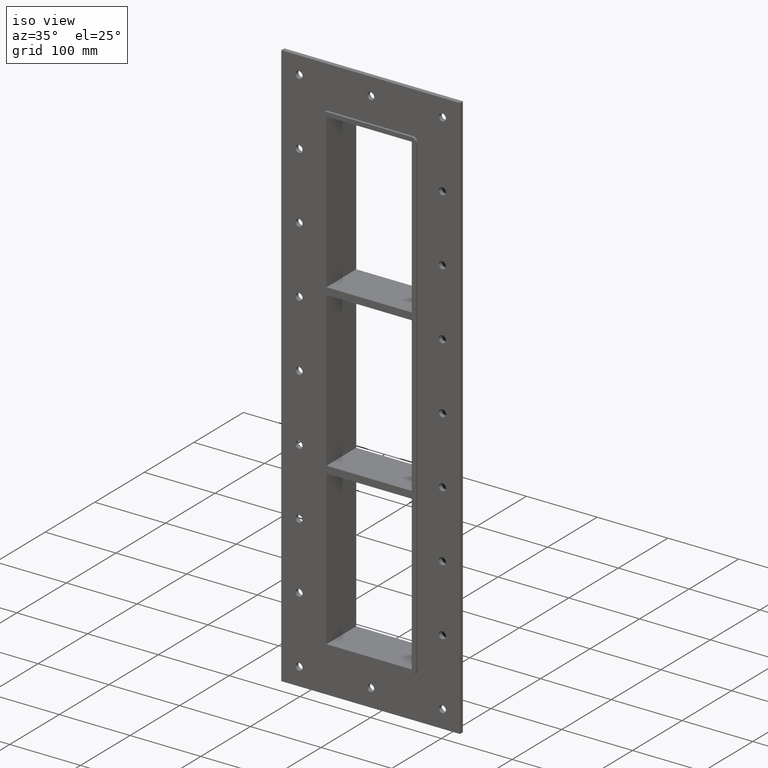
[diagram: clean part render]
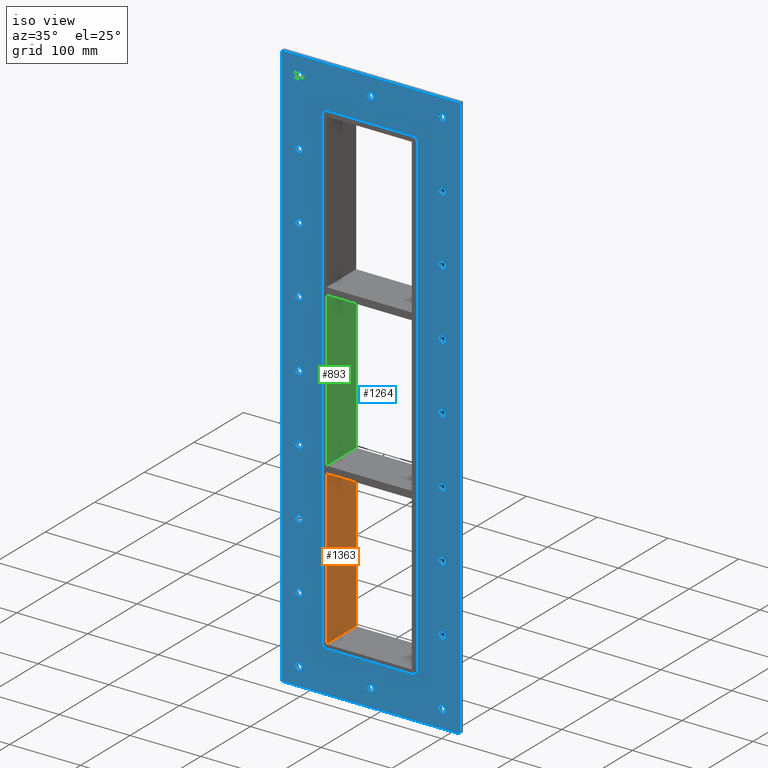
[diagram: same view with three faces highlighted in distinct colors, each labeled with its STEP entity id]
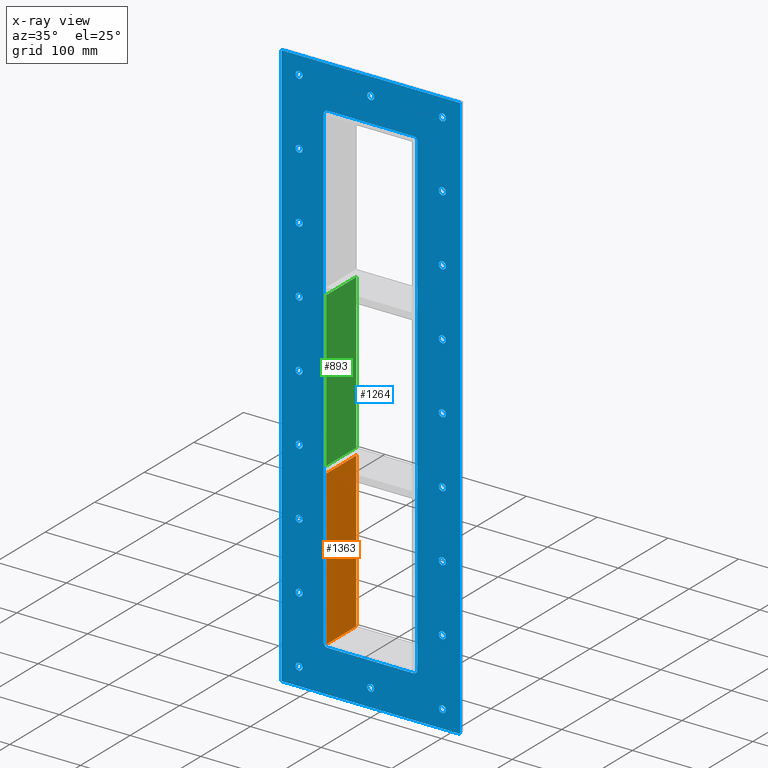
[diagram: x-ray of the same camera — body ghosted, the three highlighted faces saturated]
A machine part, iso view with three faces highlighted in distinct colors.
The next image is the same camera in x-ray (body ghosted, the three faces saturated) — at least one of them is partly hidden behind the body in this view.
Their STEP definitions:

[orange] entity #1363 — the highlighted planar face has unit normal (-1, 0, 0).
#808=CARTESIAN_POINT('',(-60.249999999999673,-3.0,-119.00000000001114));
#809=VERTEX_POINT('',#808);
#816=CARTESIAN_POINT('',(-60.249999999999673,57.0,-119.00000000001114));
#817=VERTEX_POINT('',#816);
#818=CARTESIAN_POINT('',(-60.249999999999993,57.000000000000007,-119.00000000001116));
#819=DIRECTION('',(0.0,-1.0,0.0));
#820=VECTOR('',#819,60.000000000000007);
#821=LINE('',#818,#820);
#822=EDGE_CURVE('',#817,#809,#821,.T.);
#1333=CARTESIAN_POINT('',(-60.249999999999993,0.0,-337.0));
#1334=DIRECTION('',(-1.0,0.0,0.0));
#1335=DIRECTION('',(0.0,0.0,1.0));
#1336=AXIS2_PLACEMENT_3D('',#1333,#1334,#1335);
#1337=PLANE('',#1336);
#1338=ORIENTED_EDGE('',*,*,#822,.T.);
#1339=CARTESIAN_POINT('',(-60.249999999999993,-3.0,-337.0));
#1340=VERTEX_POINT('',#1339);
#1341=CARTESIAN_POINT('',(-60.249999999999993,-3.0,-337.0));
#1342=DIRECTION('',(0.0,0.0,1.0));
#1343=VECTOR('',#1342,217.99999999998886);
#1344=LINE('',#1341,#1343);
#1345=EDGE_CURVE('',#1340,#809,#1344,.T.);
#1346=ORIENTED_EDGE('',*,*,#1345,.F.);
#1347=CARTESIAN_POINT('',(-60.249999999999993,57.0,-337.0));
#1348=VERTEX_POINT('',#1347);
#1349=CARTESIAN_POINT('',(-60.249999999999993,-3.0,-337.0));
#1350=DIRECTION('',(0.0,1.0,0.0));
#1351=VECTOR('',#1350,60.0);
#1352=LINE('',#1349,#1351);
#1353=EDGE_CURVE('',#1340,#1348,#1352,.T.);
#1354=ORIENTED_EDGE('',*,*,#1353,.T.);
#1355=CARTESIAN_POINT('',(-60.249999999999993,57.0,-119.00000000001113));
#1356=DIRECTION('',(0.0,0.0,-1.0));
#1357=VECTOR('',#1356,217.99999999998886);
#1358=LINE('',#1355,#1357);
#1359=EDGE_CURVE('',#817,#1348,#1358,.T.);
#1360=ORIENTED_EDGE('',*,*,#1359,.F.);
#1361=EDGE_LOOP('',(#1338,#1346,#1354,#1360));
#1362=FACE_OUTER_BOUND('',#1361,.T.);
#1363=ADVANCED_FACE('',(#1362),#1337,.F.);

[blue] entity #1264 — the highlighted planar face has unit normal (0, 1, 0).
#84=CARTESIAN_POINT('',(-96.250000000000057,0.0,-378.00000000000006));
#85=VERTEX_POINT('',#84);
#86=CARTESIAN_POINT('',(-101.25000000000006,0.0,-378.00000000000006));
#87=DIRECTION('',(0.0,1.0,0.0));
#88=DIRECTION('',(1.0,0.0,0.0));
#89=AXIS2_PLACEMENT_3D('',#86,#87,#88);
#90=CIRCLE('',#89,5.0);
#91=EDGE_CURVE('',#85,#85,#90,.T.);
#112=CARTESIAN_POINT('',(106.34999999999997,0.0,-283.5));
#113=VERTEX_POINT('',#112);
#114=CARTESIAN_POINT('',(101.34999999999997,0.0,-283.5));
#115=DIRECTION('',(0.0,1.0,0.0));
#116=DIRECTION('',(1.0,0.0,0.0));
#117=AXIS2_PLACEMENT_3D('',#114,#115,#116);
#118=CIRCLE('',#117,5.0);
#119=EDGE_CURVE('',#113,#113,#118,.T.);
#140=CARTESIAN_POINT('',(-96.250000000000057,0.0,-283.5));
#141=VERTEX_POINT('',#140);
#142=CARTESIAN_POINT('',(-101.25000000000006,0.0,-283.5));
#143=DIRECTION('',(0.0,1.0,0.0));
#144=DIRECTION('',(1.0,0.0,0.0));
#145=AXIS2_PLACEMENT_3D('',#142,#143,#144);
#146=CIRCLE('',#145,5.0);
#147=EDGE_CURVE('',#141,#141,#146,.T.);
#168=CARTESIAN_POINT('',(106.34999999999997,0.0,-189.0));
#169=VERTEX_POINT('',#168);
#170=CARTESIAN_POINT('',(101.34999999999997,0.0,-189.0));
#171=DIRECTION('',(0.0,1.0,0.0));
#172=DIRECTION('',(1.0,0.0,0.0));
#173=AXIS2_PLACEMENT_3D('',#170,#171,#172);
#174=CIRCLE('',#173,5.0);
#175=EDGE_CURVE('',#169,#169,#174,.T.);
#196=CARTESIAN_POINT('',(-96.250000000000057,0.0,-189.0));
#197=VERTEX_POINT('',#196);
#198=CARTESIAN_POINT('',(-101.25000000000006,0.0,-189.0));
#199=DIRECTION('',(0.0,1.0,0.0));
#200=DIRECTION('',(1.0,0.0,0.0));
#201=AXIS2_PLACEMENT_3D('',#198,#199,#200);
#202=CIRCLE('',#201,5.0);
#203=EDGE_CURVE('',#197,#197,#202,.T.);
#224=CARTESIAN_POINT('',(106.34999999999997,0.0,-94.500000000000014));
#225=VERTEX_POINT('',#224);
#226=CARTESIAN_POINT('',(101.34999999999997,0.0,-94.500000000000014));
#227=DIRECTION('',(0.0,1.0,0.0));
#228=DIRECTION('',(1.0,0.0,0.0));
#229=AXIS2_PLACEMENT_3D('',#226,#227,#228);
#230=CIRCLE('',#229,5.0);
#231=EDGE_CURVE('',#225,#225,#230,.T.);
#252=CARTESIAN_POINT('',(-96.250000000000057,0.0,-94.500000000000014));
#253=VERTEX_POINT('',#252);
#254=CARTESIAN_POINT('',(-101.25000000000006,0.0,-94.500000000000014));
#255=DIRECTION('',(0.0,1.0,0.0));
#256=DIRECTION('',(1.0,0.0,0.0));
#257=AXIS2_PLACEMENT_3D('',#254,#255,#256);
#258=CIRCLE('',#257,5.0);
#259=EDGE_CURVE('',#253,#253,#258,.T.);
#280=CARTESIAN_POINT('',(106.34999999999997,0.0,1.776357E-014));
#281=VERTEX_POINT('',#280);
#282=CARTESIAN_POINT('',(101.34999999999997,0.0,1.776357E-014));
#283=DIRECTION('',(0.0,1.0,0.0));
#284=DIRECTION('',(1.0,0.0,0.0));
#285=AXIS2_PLACEMENT_3D('',#282,#283,#284);
#286=CIRCLE('',#285,5.0);
#287=EDGE_CURVE('',#281,#281,#286,.T.);
#308=CARTESIAN_POINT('',(-96.250000000000057,0.0,1.776357E-014));
#309=VERTEX_POINT('',#308);
#310=CARTESIAN_POINT('',(-101.25000000000006,0.0,1.776357E-014));
#311=DIRECTION('',(0.0,1.0,0.0));
#312=DIRECTION('',(1.0,0.0,0.0));
#313=AXIS2_PLACEMENT_3D('',#310,#311,#312);
#314=CIRCLE('',#313,5.0);
#315=EDGE_CURVE('',#309,#309,#314,.T.);
#336=CARTESIAN_POINT('',(106.34999999999997,0.0,94.500000000000043));
#337=VERTEX_POINT('',#336);
#338=CARTESIAN_POINT('',(101.34999999999997,0.0,94.500000000000043));
#339=DIRECTION('',(0.0,1.0,0.0));
#340=DIRECTION('',(1.0,0.0,0.0));
#341=AXIS2_PLACEMENT_3D('',#338,#339,#340);
#342=CIRCLE('',#341,5.0);
#343=EDGE_CURVE('',#337,#337,#342,.T.);
#364=CARTESIAN_POINT('',(-96.250000000000057,0.0,94.500000000000043));
#365=VERTEX_POINT('',#364);
#366=CARTESIAN_POINT('',(-101.25000000000006,0.0,94.500000000000043));
#367=DIRECTION('',(0.0,1.0,0.0));
#368=DIRECTION('',(1.0,0.0,0.0));
#369=AXIS2_PLACEMENT_3D('',#366,#367,#368);
#370=CIRCLE('',#369,5.0);
#371=EDGE_CURVE('',#365,#365,#370,.T.);
#392=CARTESIAN_POINT('',(106.34999999999997,0.0,189.0));
#393=VERTEX_POINT('',#392);
#394=CARTESIAN_POINT('',(101.34999999999997,0.0,189.0));
#395=DIRECTION('',(0.0,1.0,0.0));
#396=DIRECTION('',(1.0,0.0,0.0));
#397=AXIS2_PLACEMENT_3D('',#394,#395,#396);
#398=CIRCLE('',#397,5.0);
#399=EDGE_CURVE('',#393,#393,#398,.T.);
#420=CARTESIAN_POINT('',(-96.250000000000057,0.0,189.0));
#421=VERTEX_POINT('',#420);
#422=CARTESIAN_POINT('',(-101.25000000000006,0.0,189.0));
#423=DIRECTION('',(0.0,1.0,0.0));
#424=DIRECTION('',(1.0,0.0,0.0));
#425=AXIS2_PLACEMENT_3D('',#422,#423,#424);
#426=CIRCLE('',#425,5.0);
#427=EDGE_CURVE('',#421,#421,#426,.T.);
#448=CARTESIAN_POINT('',(106.34999999999997,0.0,283.5));
#449=VERTEX_POINT('',#448);
#450=CARTESIAN_POINT('',(101.34999999999997,0.0,283.5));
#451=DIRECTION('',(0.0,1.0,0.0));
#452=DIRECTION('',(1.0,0.0,0.0));
#453=AXIS2_PLACEMENT_3D('',#450,#451,#452);
#454=CIRCLE('',#453,5.0);
#455=EDGE_CURVE('',#449,#449,#454,.T.);
#476=CARTESIAN_POINT('',(-96.250000000000057,0.0,283.5));
#477=VERTEX_POINT('',#476);
#478=CARTESIAN_POINT('',(-101.25000000000006,0.0,283.5));
#479=DIRECTION('',(0.0,1.0,0.0));
#480=DIRECTION('',(1.0,0.0,0.0));
#481=AXIS2_PLACEMENT_3D('',#478,#479,#480);
#482=CIRCLE('',#481,5.0);
#483=EDGE_CURVE('',#477,#477,#482,.T.);
#504=CARTESIAN_POINT('',(5.049999999999955,0.0,378.00000000000006));
#505=VERTEX_POINT('',#504);
#506=CARTESIAN_POINT('',(0.049999999999955,0.0,378.00000000000006));
#507=DIRECTION('',(0.0,1.0,0.0));
#508=DIRECTION('',(1.0,0.0,0.0));
#509=AXIS2_PLACEMENT_3D('',#506,#507,#508);
#510=CIRCLE('',#509,5.0);
#511=EDGE_CURVE('',#505,#505,#510,.T.);
#532=CARTESIAN_POINT('',(5.049999999999955,0.0,-378.00000000000006));
#533=VERTEX_POINT('',#532);
#534=CARTESIAN_POINT('',(0.049999999999955,0.0,-378.00000000000006));
#535=DIRECTION('',(0.0,1.0,0.0));
#536=DIRECTION('',(1.0,0.0,0.0));
#537=AXIS2_PLACEMENT_3D('',#534,#535,#536);
#538=CIRCLE('',#537,5.0);
#539=EDGE_CURVE('',#533,#533,#538,.T.);
#560=CARTESIAN_POINT('',(106.34999999999997,0.0,-378.00000000000006));
#561=VERTEX_POINT('',#560);
#562=CARTESIAN_POINT('',(101.34999999999997,0.0,-378.00000000000006));
#563=DIRECTION('',(0.0,1.0,0.0));
#564=DIRECTION('',(1.0,0.0,0.0));
#565=AXIS2_PLACEMENT_3D('',#562,#563,#564);
#566=CIRCLE('',#565,5.0);
#567=EDGE_CURVE('',#561,#561,#566,.T.);
#588=CARTESIAN_POINT('',(-96.250000000000057,0.0,378.00000000000006));
#589=VERTEX_POINT('',#588);
#590=CARTESIAN_POINT('',(-101.25000000000006,0.0,378.00000000000006));
#591=DIRECTION('',(0.0,1.0,0.0));
#592=DIRECTION('',(1.0,0.0,0.0));
#593=AXIS2_PLACEMENT_3D('',#590,#591,#592);
#594=CIRCLE('',#593,5.0);
#595=EDGE_CURVE('',#589,#589,#594,.T.);
#616=CARTESIAN_POINT('',(106.34999999999997,0.0,378.00000000000006));
#617=VERTEX_POINT('',#616);
#618=CARTESIAN_POINT('',(101.34999999999997,0.0,378.00000000000006));
#619=DIRECTION('',(0.0,1.0,0.0));
#620=DIRECTION('',(1.0,0.0,0.0));
#621=AXIS2_PLACEMENT_3D('',#618,#619,#620);
#622=CIRCLE('',#621,5.0);
#623=EDGE_CURVE('',#617,#617,#622,.T.);
#1095=CARTESIAN_POINT('',(-8.055279E-015,0.0,0.0));
#1096=DIRECTION('',(0.0,1.0,0.0));
#1097=DIRECTION('',(0.0,0.0,1.0));
#1098=AXIS2_PLACEMENT_3D('',#1095,#1096,#1097);
#1099=PLANE('',#1098);
#1100=CARTESIAN_POINT('',(-126.25000000000001,0.0,403.00000000000006));
#1101=VERTEX_POINT('',#1100);
#1102=CARTESIAN_POINT('',(126.25,0.0,403.00000000000006));
#1103=VERTEX_POINT('',#1102);
#1104=CARTESIAN_POINT('',(-126.25000000000001,0.0,403.00000000000006));
#1105=DIRECTION('',(1.0,0.0,0.0));
#1106=VECTOR('',#1105,252.5);
#1107=LINE('',#1104,#1106);
#1108=EDGE_CURVE('',#1101,#1103,#1107,.T.);
#1109=ORIENTED_EDGE('',*,*,#1108,.F.);
#1110=CARTESIAN_POINT('',(-126.25000000000001,0.0,-403.00000000000006));
#1111=VERTEX_POINT('',#1110);
#1112=CARTESIAN_POINT('',(-126.25000000000001,0.0,-403.00000000000006));
#1113=DIRECTION('',(0.0,0.0,1.0));
#1114=VECTOR('',#1113,806.00000000000011);
#1115=LINE('',#1112,#1114);
#1116=EDGE_CURVE('',#1111,#1101,#1115,.T.);
#1117=ORIENTED_EDGE('',*,*,#1116,.F.);
#1118=CARTESIAN_POINT('',(126.25,0.0,-403.00000000000006));
#1119=VERTEX_POINT('',#1118);
#1120=CARTESIAN_POINT('',(126.25,0.0,-403.00000000000006));
#1121=DIRECTION('',(-1.0,0.0,0.0));
#1122=VECTOR('',#1121,252.5);
#1123=LINE('',#1120,#1122);
#1124=EDGE_CURVE('',#1119,#1111,#1123,.T.);
#1125=ORIENTED_EDGE('',*,*,#1124,.F.);
#1126=CARTESIAN_POINT('',(126.25,0.0,403.00000000000006));
#1127=DIRECTION('',(0.0,0.0,-1.0));
#1128=VECTOR('',#1127,806.00000000000011);
#1129=LINE('',#1126,#1128);
#1130=EDGE_CURVE('',#1103,#1119,#1129,.T.);
#1131=ORIENTED_EDGE('',*,*,#1130,.F.);
#1132=EDGE_LOOP('',(#1109,#1117,#1125,#1131));
#1133=FACE_OUTER_BOUND('',#1132,.T.);
#1134=ORIENTED_EDGE('',*,*,#91,.T.);
#1135=EDGE_LOOP('',(#1134));
#1136=FACE_BOUND('',#1135,.T.);
#1137=ORIENTED_EDGE('',*,*,#119,.T.);
#1138=EDGE_LOOP('',(#1137));
#1139=FACE_BOUND('',#1138,.T.);
#1140=ORIENTED_EDGE('',*,*,#147,.T.);
#1141=EDGE_LOOP('',(#1140));
#1142=FACE_BOUND('',#1141,.T.);
#1143=ORIENTED_EDGE('',*,*,#175,.T.);
#1144=EDGE_LOOP('',(#1143));
#1145=FACE_BOUND('',#1144,.T.);
#1146=ORIENTED_EDGE('',*,*,#203,.T.);
#1147=EDGE_LOOP('',(#1146));
#1148=FACE_BOUND('',#1147,.T.);
#1149=ORIENTED_EDGE('',*,*,#231,.T.);
#1150=EDGE_LOOP('',(#1149));
#1151=FACE_BOUND('',#1150,.T.);
#1152=ORIENTED_EDGE('',*,*,#259,.T.);
#1153=EDGE_LOOP('',(#1152));
#1154=FACE_BOUND('',#1153,.T.);
#1155=ORIENTED_EDGE('',*,*,#287,.T.);
#1156=EDGE_LOOP('',(#1155));
#1157=FACE_BOUND('',#1156,.T.);
#1158=ORIENTED_EDGE('',*,*,#315,.T.);
#1159=EDGE_LOOP('',(#1158));
#1160=FACE_BOUND('',#1159,.T.);
#1161=ORIENTED_EDGE('',*,*,#343,.T.);
#1162=EDGE_LOOP('',(#1161));
#1163=FACE_BOUND('',#1162,.T.);
#1164=ORIENTED_EDGE('',*,*,#371,.T.);
#1165=EDGE_LOOP('',(#1164));
#1166=FACE_BOUND('',#1165,.T.);
#1167=ORIENTED_EDGE('',*,*,#399,.T.);
#1168=EDGE_LOOP('',(#1167));
#1169=FACE_BOUND('',#1168,.T.);
#1170=ORIENTED_EDGE('',*,*,#427,.T.);
#1171=EDGE_LOOP('',(#1170));
#1172=FACE_BOUND('',#1171,.T.);
#1173=ORIENTED_EDGE('',*,*,#455,.T.);
#1174=EDGE_LOOP('',(#1173));
#1175=FACE_BOUND('',#1174,.T.);
#1176=ORIENTED_EDGE('',*,*,#483,.T.);
#1177=EDGE_LOOP('',(#1176));
#1178=FACE_BOUND('',#1177,.T.);
#1179=ORIENTED_EDGE('',*,*,#511,.T.);
#1180=EDGE_LOOP('',(#1179));
#1181=FACE_BOUND('',#1180,.T.);
#1182=ORIENTED_EDGE('',*,*,#539,.T.);
#1183=EDGE_LOOP('',(#1182));
#1184=FACE_BOUND('',#1183,.T.);
#1185=ORIENTED_EDGE('',*,*,#567,.T.);
#1186=EDGE_LOOP('',(#1185));
#1187=FACE_BOUND('',#1186,.T.);
#1188=ORIENTED_EDGE('',*,*,#595,.T.);
#1189=EDGE_LOOP('',(#1188));
#1190=FACE_BOUND('',#1189,.T.);
#1191=ORIENTED_EDGE('',*,*,#623,.T.);
#1192=EDGE_LOOP('',(#1191));
#1193=FACE_BOUND('',#1192,.T.);
#1194=CARTESIAN_POINT('',(-66.25,0.0,-337.0));
#1195=VERTEX_POINT('',#1194);
#1196=CARTESIAN_POINT('',(-60.25,0.0,-343.00000000000006));
#1197=VERTEX_POINT('',#1196);
#1198=CARTESIAN_POINT('',(-60.25,0.0,-337.0));
#1199=DIRECTION('',(0.0,-1.0,0.0));
#1200=DIRECTION('',(-0.707106781186551,0.0,-0.707106781186544));
#1201=AXIS2_PLACEMENT_3D('',#1198,#1199,#1200);
#1202=CIRCLE('',#1201,6.0);
#1203=EDGE_CURVE('',#1195,#1197,#1202,.T.);
#1204=ORIENTED_EDGE('',*,*,#1203,.F.);
#1205=CARTESIAN_POINT('',(-66.25,0.0,337.0));
#1206=VERTEX_POINT('',#1205);
#1207=CARTESIAN_POINT('',(-66.25,0.0,337.00000000000011));
#1208=DIRECTION('',(0.0,0.0,-1.0));
#1209=VECTOR('',#1208,674.00000000000011);
#1210=LINE('',#1207,#1209);
#1211=EDGE_CURVE('',#1206,#1195,#1210,.T.);
#1212=ORIENTED_EDGE('',*,*,#1211,.F.);
#1213=CARTESIAN_POINT('',(-60.25,0.0,343.00000000000006));
#1214=VERTEX_POINT('',#1213);
#1215=CARTESIAN_POINT('',(-60.25,0.0,337.0));
#1216=DIRECTION('',(0.0,-1.0,0.0));
#1217=DIRECTION('',(-0.707106781186551,0.0,0.707106781186544));
#1218=AXIS2_PLACEMENT_3D('',#1215,#1216,#1217);
#1219=CIRCLE('',#1218,6.0);
#1220=EDGE_CURVE('',#1214,#1206,#1219,.T.);
#1221=ORIENTED_EDGE('',*,*,#1220,.F.);
#1222=CARTESIAN_POINT('',(60.25,0.0,343.00000000000006));
#1223=VERTEX_POINT('',#1222);
#1224=CARTESIAN_POINT('',(60.249999999999993,0.0,343.00000000000006));
#1225=DIRECTION('',(-1.0,0.0,0.0));
#1226=VECTOR('',#1225,120.5);
#1227=LINE('',#1224,#1226);
#1228=EDGE_CURVE('',#1223,#1214,#1227,.T.);
#1229=ORIENTED_EDGE('',*,*,#1228,.F.);
#1230=CARTESIAN_POINT('',(66.25,0.0,337.0));
#1231=VERTEX_POINT('',#1230);
#1232=CARTESIAN_POINT('',(60.25,0.0,337.0));
#1233=DIRECTION('',(0.0,-1.0,0.0));
#1234=DIRECTION('',(0.707106781186551,0.0,0.707106781186544));
#1235=AXIS2_PLACEMENT_3D('',#1232,#1233,#1234);
#1236=CIRCLE('',#1235,6.0);
#1237=EDGE_CURVE('',#1231,#1223,#1236,.T.);
#1238=ORIENTED_EDGE('',*,*,#1237,.F.);
#1239=CARTESIAN_POINT('',(66.25,0.0,-337.0));
#1240=VERTEX_POINT('',#1239);
#1241=CARTESIAN_POINT('',(66.25,0.0,-337.00000000000011));
#1242=DIRECTION('',(0.0,0.0,1.0));
#1243=VECTOR('',#1242,674.00000000000011);
#1244=LINE('',#1241,#1243);
#1245=EDGE_CURVE('',#1240,#1231,#1244,.T.);
#1246=ORIENTED_EDGE('',*,*,#1245,.F.);
#1247=CARTESIAN_POINT('',(60.25,0.0,-343.00000000000006));
#1248=VERTEX_POINT('',#1247);
#1249=CARTESIAN_POINT('',(60.25,0.0,-337.0));
#1250=DIRECTION('',(0.0,-1.0,0.0));
#1251=DIRECTION('',(0.707106781186551,0.0,-0.707106781186544));
#1252=AXIS2_PLACEMENT_3D('',#1249,#1250,#1251);
#1253=CIRCLE('',#1252,6.0);
#1254=EDGE_CURVE('',#1248,#1240,#1253,.T.);
#1255=ORIENTED_EDGE('',*,*,#1254,.F.);
#1256=CARTESIAN_POINT('',(-60.250000000000007,0.0,-343.00000000000006));
#1257=DIRECTION('',(1.0,0.0,0.0));
#1258=VECTOR('',#1257,120.5);
#1259=LINE('',#1256,#1258);
#1260=EDGE_CURVE('',#1197,#1248,#1259,.T.);
#1261=ORIENTED_EDGE('',*,*,#1260,.F.);
#1262=EDGE_LOOP('',(#1204,#1212,#1221,#1229,#1238,#1246,#1255,#1261));
#1263=FACE_BOUND('',#1262,.T.);
#1264=ADVANCED_FACE('',(#1133,#1136,#1139,#1142,#1145,#1148,#1151,#1154,#1157,#1160,#1163,#1166,#1169,#1172,#1175,#1178,#1181,#1184,#1187,#1190,#1193,#1263),#1099,.F.);

[green] entity #893 — the highlighted planar face has unit normal (-1, 0, 0).
#635=CARTESIAN_POINT('',(-60.249999999999673,-3.0,108.99999999998886));
#636=VERTEX_POINT('',#635);
#643=CARTESIAN_POINT('',(-60.249999999999673,57.0,108.99999999998886));
#644=VERTEX_POINT('',#643);
#645=CARTESIAN_POINT('',(-60.249999999999993,57.000000000000007,108.99999999998884));
#646=DIRECTION('',(0.0,-1.0,0.0));
#647=VECTOR('',#646,60.000000000000007);
#648=LINE('',#645,#647);
#649=EDGE_CURVE('',#644,#636,#648,.T.);
#846=CARTESIAN_POINT('',(-60.249999999999673,-3.0,-109.00000000000006));
#847=VERTEX_POINT('',#846);
#855=CARTESIAN_POINT('',(-60.249999999999673,57.0,-109.00000000000006));
#856=VERTEX_POINT('',#855);
#863=CARTESIAN_POINT('',(-60.249999999999993,-3.0,-109.00000000000006));
#864=DIRECTION('',(0.0,1.0,0.0));
#865=VECTOR('',#864,60.000000000000007);
#866=LINE('',#863,#865);
#867=EDGE_CURVE('',#847,#856,#866,.T.);
#872=CARTESIAN_POINT('',(-60.249999999999993,0.0,-337.0));
#873=DIRECTION('',(-1.0,0.0,0.0));
#874=DIRECTION('',(0.0,0.0,1.0));
#875=AXIS2_PLACEMENT_3D('',#872,#873,#874);
#876=PLANE('',#875);
#877=ORIENTED_EDGE('',*,*,#649,.T.);
#878=CARTESIAN_POINT('',(-60.249999999999993,-3.0,-109.00000000000004));
#879=DIRECTION('',(0.0,0.0,1.0));
#880=VECTOR('',#879,217.99999999998892);
#881=LINE('',#878,#880);
#882=EDGE_CURVE('',#847,#636,#881,.T.);
#883=ORIENTED_EDGE('',*,*,#882,.F.);
#884=ORIENTED_EDGE('',*,*,#867,.T.);
#885=CARTESIAN_POINT('',(-60.249999999999993,57.0,108.99999999998886));
#886=DIRECTION('',(0.0,0.0,-1.0));
#887=VECTOR('',#886,217.99999999998892);
#888=LINE('',#885,#887);
#889=EDGE_CURVE('',#644,#856,#888,.T.);
#890=ORIENTED_EDGE('',*,*,#889,.F.);
#891=EDGE_LOOP('',(#877,#883,#884,#890));
#892=FACE_OUTER_BOUND('',#891,.T.);
#893=ADVANCED_FACE('',(#892),#876,.F.);